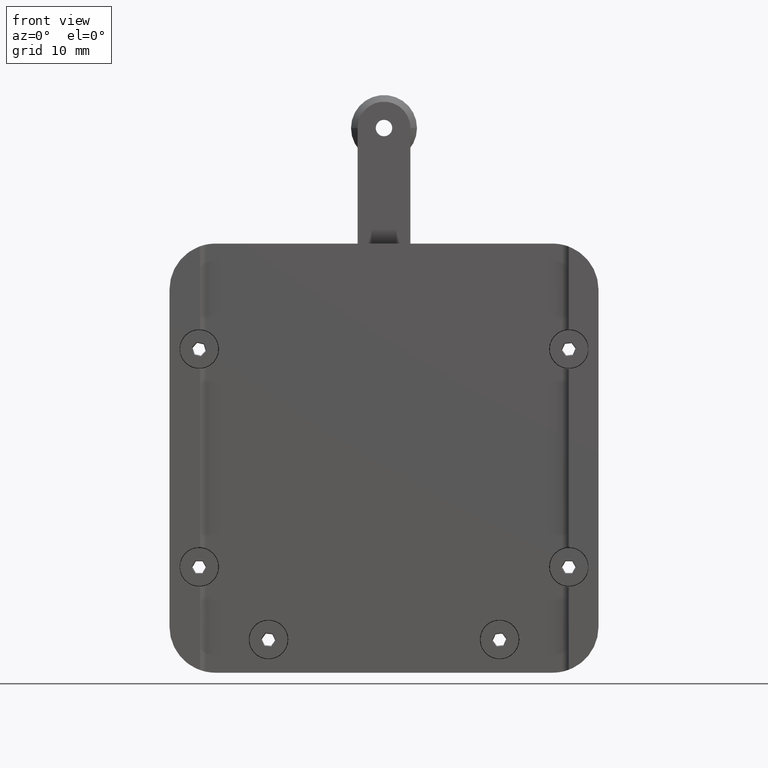
[diagram: clean part render]
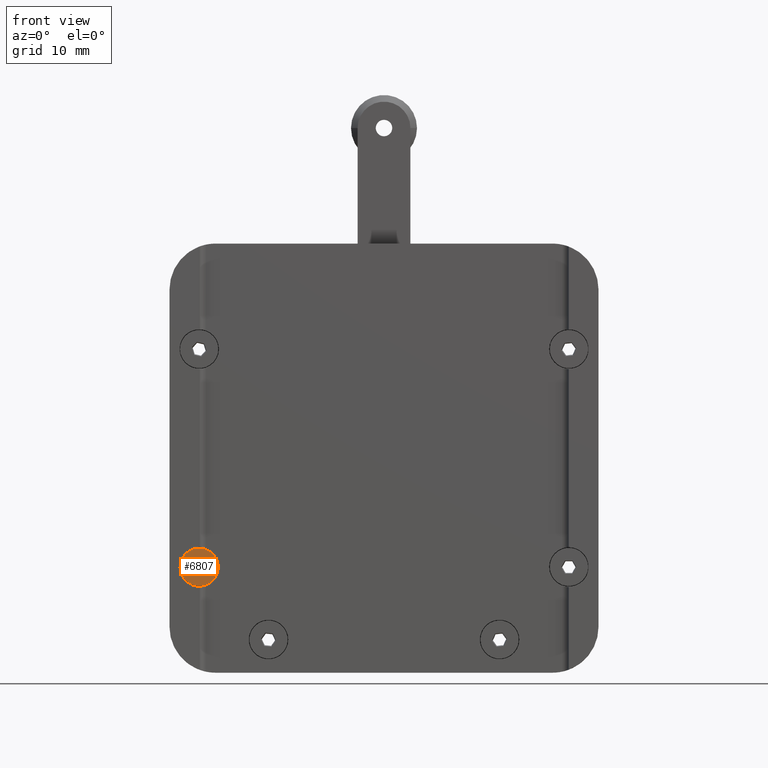
[diagram: same view with one face highlighted and labeled with its STEP entity id]
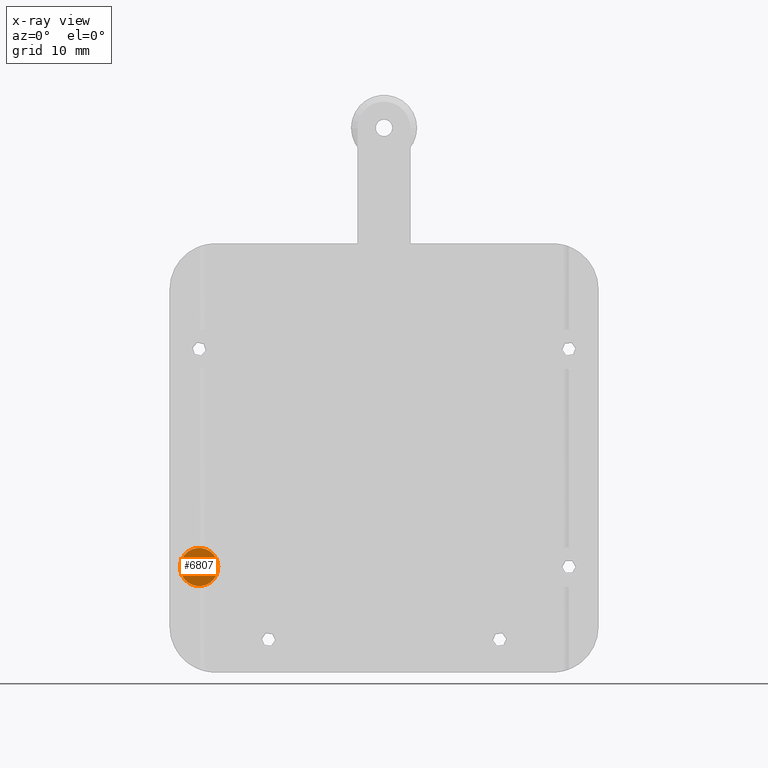
[diagram: x-ray of the same camera — body ghosted, the highlighted face saturated]
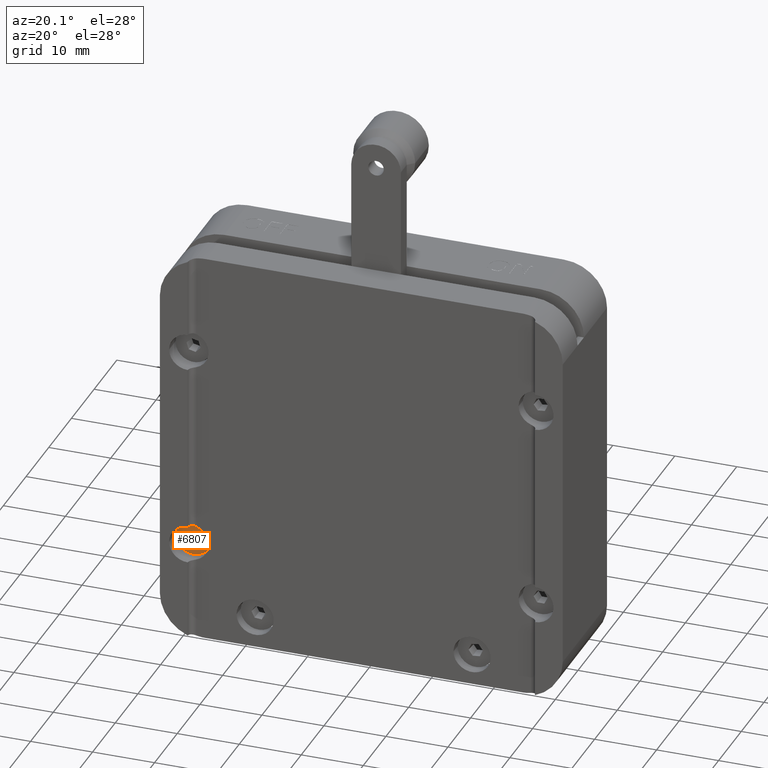
[diagram: same view with one face highlighted and labeled with its STEP entity id]
A machine part, front view. The second image highlights one B-rep face of the part: STEP entity #6807.
The next image is the same camera in x-ray: the body ghosted, the highlighted face saturated — about 0% of this face is hidden behind the body in this view.
A second angle (auxiliary view) of the same face is appended — the face is thin or edge-on in the first view.
In plain terms, the highlighted planar face has unit normal (0, -1, -0).
Its self-contained STEP definition (entity closure, byte-faithful):
#81 = EDGE_CURVE ( 'NONE', #9296, #7291, #1337, .T. ) ;
#175 = FACE_OUTER_BOUND ( 'NONE', #5201, .T. ) ;
#327 = PLANE ( 'NONE',  #8910 ) ;
#378 = EDGE_CURVE ( 'NONE', #1504, #3638, #8977, .T. ) ;
#384 = LINE ( 'NONE', #1266, #2623 ) ;
#769 = EDGE_CURVE ( 'NONE', #4546, #2605, #10388, .T. ) ;
#848 = EDGE_CURVE ( 'NONE', #8544, #4546, #384, .T. ) ;
#931 = CARTESIAN_POINT ( 'NONE',  ( -28.57735026918963700, -0.9349999999999913900, -17.49999999999997900 ) ) ;
#1266 = CARTESIAN_POINT ( 'NONE',  ( -27.42264973081038400, -0.9349999999999913900, -17.49999999999997900 ) ) ;
#1337 = CIRCLE ( 'NONE', #2367, 2.890000000000000100 ) ;
#1504 = VERTEX_POINT ( 'NONE', #5863 ) ;
#1600 = EDGE_CURVE ( 'NONE', #3638, #8544, #4441, .T. ) ;
#1992 = CARTESIAN_POINT ( 'NONE',  ( -26.84529946162075800, -0.9349999999999913900, -16.49999999999997500 ) ) ;
#2053 = EDGE_CURVE ( 'NONE', #7291, #9296, #9239, .T. ) ;
#2125 = DIRECTION ( 'NONE',  ( 1.000000000000000000, 0.0000000000000000000, 0.0000000000000000000 ) ) ;
#2259 = ORIENTED_EDGE ( 'NONE', *, *, #9217, .F. ) ;
#2367 = AXIS2_PLACEMENT_3D ( 'NONE', #2990, #8027, #2125 ) ;
#2380 = CARTESIAN_POINT ( 'NONE',  ( -27.42264973081038400, -0.9349999999999913900, -15.49999999999997500 ) ) ;
#2444 = LINE ( 'NONE', #2380, #6676 ) ;
#2605 = VERTEX_POINT ( 'NONE', #9134 ) ;
#2623 = VECTOR ( 'NONE', #6329, 1000.000000000000100 ) ;
#2824 = ORIENTED_EDGE ( 'NONE', *, *, #769, .F. ) ;
#2990 = CARTESIAN_POINT ( 'NONE',  ( -28.00000000000001100, -0.9349999999999913900, -16.49999999999997500 ) ) ;
#3247 = ORIENTED_EDGE ( 'NONE', *, *, #5309, .F. ) ;
#3250 = DIRECTION ( 'NONE',  ( -1.000000000000000000, -0.0000000000000000000, 0.0000000000000000000 ) ) ;
#3397 = LINE ( 'NONE', #7696, #9567 ) ;
#3484 = CARTESIAN_POINT ( 'NONE',  ( -26.84529946162075800, -0.9349999999999913900, -16.49999999999997500 ) ) ;
#3638 = VERTEX_POINT ( 'NONE', #7982 ) ;
#3709 = VECTOR ( 'NONE', #8737, 1000.000000000000100 ) ;
#3771 = CARTESIAN_POINT ( 'NONE',  ( -28.00000000000001100, -0.9349999999999913900, -16.49999999999997500 ) ) ;
#3925 = ORIENTED_EDGE ( 'NONE', *, *, #2053, .T. ) ;
#4343 = DIRECTION ( 'NONE',  ( -0.5000000000000001100, 5.633679745264338000E-019, -0.8660254037844384900 ) ) ;
#4441 = LINE ( 'NONE', #931, #8652 ) ;
#4482 = VECTOR ( 'NONE', #10106, 1000.000000000000100 ) ;
#4546 = VERTEX_POINT ( 'NONE', #3484 ) ;
#4565 = CARTESIAN_POINT ( 'NONE',  ( -28.00000000000001100, -0.9349999999999913900, -16.49999999999997500 ) ) ;
#4592 = DIRECTION ( 'NONE',  ( 1.000000000000000000, 0.0000000000000000000, 0.0000000000000000000 ) ) ;
#4822 = CARTESIAN_POINT ( 'NONE',  ( -25.11000000000001000, -0.9349999999999913900, -16.49999999999997500 ) ) ;
#5201 = EDGE_LOOP ( 'NONE', ( #3925, #8460 ) ) ;
#5309 = EDGE_CURVE ( 'NONE', #6417, #1504, #3397, .T. ) ;
#5437 = DIRECTION ( 'NONE',  ( 1.000000000000000000, 0.0000000000000000000, 0.0000000000000000000 ) ) ;
#5551 = ORIENTED_EDGE ( 'NONE', *, *, #378, .F. ) ;
#5671 = CARTESIAN_POINT ( 'NONE',  ( -28.57735026918963700, -0.9349999999999913900, -15.49999999999997500 ) ) ;
#5863 = CARTESIAN_POINT ( 'NONE',  ( -29.15470053837926300, -0.9349999999999913900, -16.49999999999997500 ) ) ;
#6080 = AXIS2_PLACEMENT_3D ( 'NONE', #3771, #9633, #4592 ) ;
#6329 = DIRECTION ( 'NONE',  ( 0.5000000000000001100, -5.633679745264338900E-019, 0.8660254037844386000 ) ) ;
#6417 = VERTEX_POINT ( 'NONE', #5671 ) ;
#6497 = CARTESIAN_POINT ( 'NONE',  ( -27.42264973081038400, -0.9349999999999913900, -17.49999999999997900 ) ) ;
#6662 = FACE_BOUND ( 'NONE', #10433, .T. ) ;
#6676 = VECTOR ( 'NONE', #3250, 1000.000000000000000 ) ;
#6737 = CARTESIAN_POINT ( 'NONE',  ( -30.89000000000001100, -0.9349999999999913900, -16.49999999999997500 ) ) ;
#6807 = ADVANCED_FACE ( 'NONE', ( #6662, #175 ), #327, .T. ) ;
#7291 = VERTEX_POINT ( 'NONE', #4822 ) ;
#7678 = DIRECTION ( 'NONE',  ( 1.000000000000000000, 0.0000000000000000000, 0.0000000000000000000 ) ) ;
#7696 = CARTESIAN_POINT ( 'NONE',  ( -28.57735026918963700, -0.9349999999999913900, -15.49999999999997500 ) ) ;
#7757 = CARTESIAN_POINT ( 'NONE',  ( -29.15470053837926300, -0.9349999999999913900, -16.49999999999997500 ) ) ;
#7982 = CARTESIAN_POINT ( 'NONE',  ( -28.57735026918963700, -0.9349999999999913900, -17.49999999999997900 ) ) ;
#8027 = DIRECTION ( 'NONE',  ( 0.0000000000000000000, -1.000000000000000000, -6.505213034913017900E-019 ) ) ;
#8460 = ORIENTED_EDGE ( 'NONE', *, *, #81, .T. ) ;
#8544 = VERTEX_POINT ( 'NONE', #6497 ) ;
#8652 = VECTOR ( 'NONE', #7678, 1000.000000000000000 ) ;
#8737 = DIRECTION ( 'NONE',  ( -0.5000000000000004400, -5.633679745264338000E-019, 0.8660254037844383700 ) ) ;
#8751 = ORIENTED_EDGE ( 'NONE', *, *, #1600, .F. ) ;
#8910 = AXIS2_PLACEMENT_3D ( 'NONE', #4565, #10438, #5437 ) ;
#8977 = LINE ( 'NONE', #7757, #4482 ) ;
#9134 = CARTESIAN_POINT ( 'NONE',  ( -27.42264973081038400, -0.9349999999999913900, -15.49999999999997500 ) ) ;
#9217 = EDGE_CURVE ( 'NONE', #2605, #6417, #2444, .T. ) ;
#9239 = CIRCLE ( 'NONE', #6080, 2.890000000000000100 ) ;
#9296 = VERTEX_POINT ( 'NONE', #6737 ) ;
#9537 = ORIENTED_EDGE ( 'NONE', *, *, #848, .F. ) ;
#9567 = VECTOR ( 'NONE', #4343, 1000.000000000000200 ) ;
#9633 = DIRECTION ( 'NONE',  ( 0.0000000000000000000, -1.000000000000000000, -6.505213034913017900E-019 ) ) ;
#10106 = DIRECTION ( 'NONE',  ( 0.5000000000000002200, 5.633679745264338900E-019, -0.8660254037844384900 ) ) ;
#10388 = LINE ( 'NONE', #1992, #3709 ) ;
#10433 = EDGE_LOOP ( 'NONE', ( #9537, #8751, #5551, #3247, #2259, #2824 ) ) ;
#10438 = DIRECTION ( 'NONE',  ( 0.0000000000000000000, -1.000000000000000000, -6.505213034913017900E-019 ) ) ;